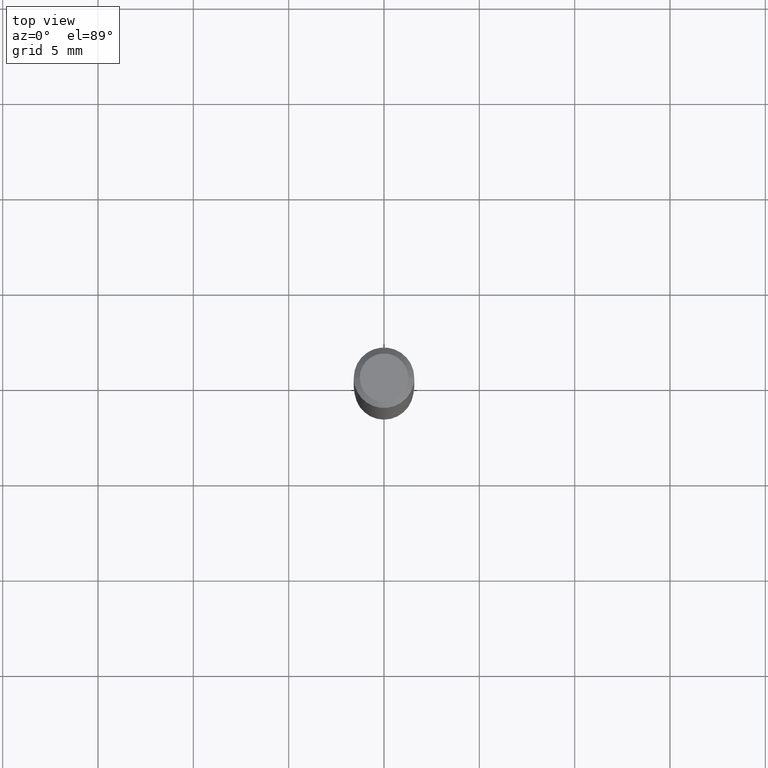
[diagram: clean part render]
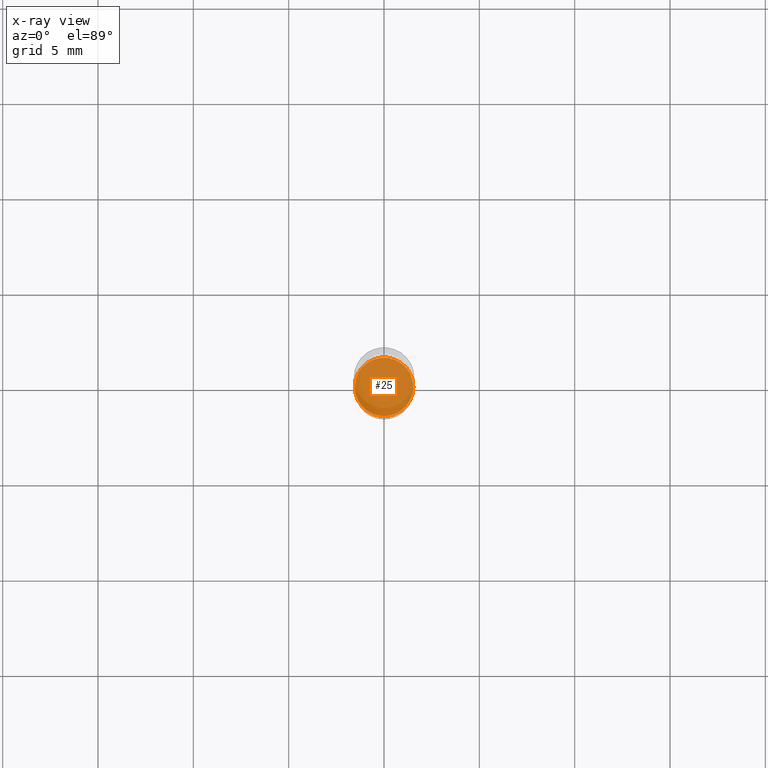
[diagram: x-ray — body ghosted, one internal face saturated and labeled with its STEP entity id]
A machine part, top view, then the same camera in x-ray: the body is ghosted and one INTERNAL B-rep face — a face not visible from any outside direction — is saturated and labeled: STEP entity #25.
In plain terms, the highlighted planar face has unit normal (-0, 0, 1).
Its self-contained STEP definition (entity closure, byte-faithful):
#25 = ADVANCED_FACE ( 'NONE', ( #313 ), #274, .F. ) ;
#35 = DIRECTION ( 'NONE',  ( -2.438088387897960049E-29, 3.491481338843145188E-15, 1.000000000000000000 ) ) ;
#41 = DIRECTION ( 'NONE',  ( -2.445468806185136597E-29, 3.491481338843145583E-15, 1.000000000000000000 ) ) ;
#76 = DIRECTION ( 'NONE',  ( -2.445468806185136597E-29, 3.491481338843145583E-15, 1.000000000000000000 ) ) ;
#83 = DIRECTION ( 'NONE',  ( 1.000000000000000000, -6.982962677686269866E-15, 0.000000000000000000 ) ) ;
#114 = EDGE_CURVE ( 'NONE', #403, #435, #425, .T. ) ;
#122 = CARTESIAN_POINT ( 'NONE',  ( 2.690015686803650369E-29, -3.840629472727460101E-15, -1.100000000000000089 ) ) ;
#137 = ORIENTED_EDGE ( 'NONE', *, *, #181, .F. ) ;
#152 = AXIS2_PLACEMENT_3D ( 'NONE', #197, #76, #199 ) ;
#175 = ORIENTED_EDGE ( 'NONE', *, *, #114, .F. ) ;
#181 = EDGE_CURVE ( 'NONE', #435, #403, #381, .T. ) ;
#197 = CARTESIAN_POINT ( 'NONE',  ( 2.690015686803650369E-29, -3.840629472727460101E-15, -1.100000000000000089 ) ) ;
#199 = DIRECTION ( 'NONE',  ( 1.000000000000000000, -6.982962677686269866E-15, 0.000000000000000000 ) ) ;
#245 = EDGE_LOOP ( 'NONE', ( #137, #175 ) ) ;
#274 = PLANE ( 'NONE',  #390 ) ;
#313 = FACE_OUTER_BOUND ( 'NONE', #245, .T. ) ;
#332 = AXIS2_PLACEMENT_3D ( 'NONE', #122, #41, #83 ) ;
#381 = CIRCLE ( 'NONE', #332, 0.06049999999999999128 ) ;
#390 = AXIS2_PLACEMENT_3D ( 'NONE', #452, #35, #420 ) ;
#403 = VERTEX_POINT ( 'NONE', #444 ) ;
#414 = CARTESIAN_POINT ( 'NONE',  ( 0.06049999999999999128, -4.263098714727479742E-15, -1.100000000000000089 ) ) ;
#420 = DIRECTION ( 'NONE',  ( 1.000000000000000000, -6.982962677686265922E-15, 4.876176775795935793E-29 ) ) ;
#425 = CIRCLE ( 'NONE', #152, 0.06049999999999999128 ) ;
#435 = VERTEX_POINT ( 'NONE', #414 ) ;
#444 = CARTESIAN_POINT ( 'NONE',  ( -0.06049999999999999128, -3.408101890418488695E-15, -1.100000000000000089 ) ) ;
#452 = CARTESIAN_POINT ( 'NONE',  ( 2.690015686803650369E-29, -3.840629472727460101E-15, -1.100000000000000089 ) ) ;